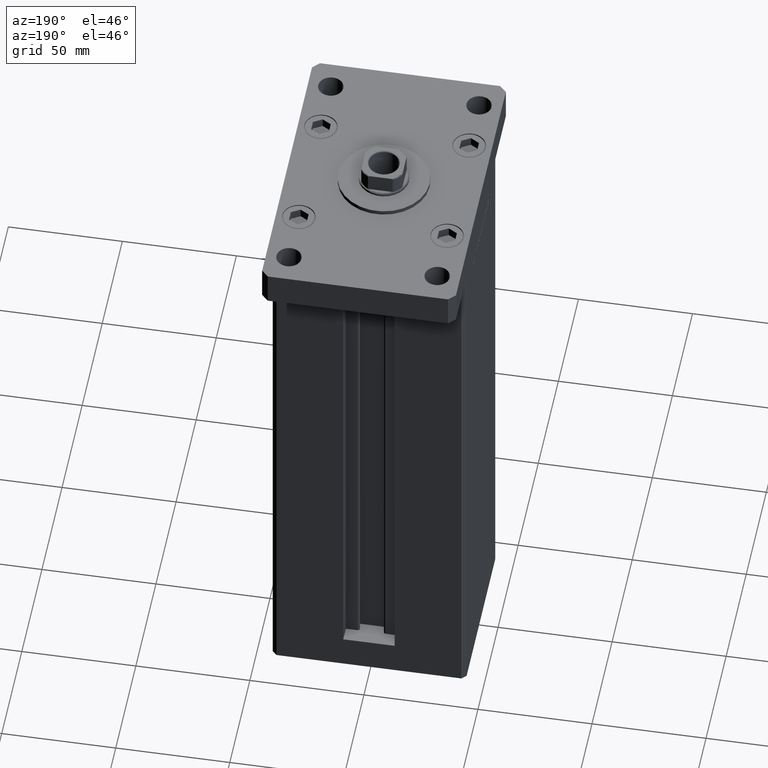
[diagram: clean part render]
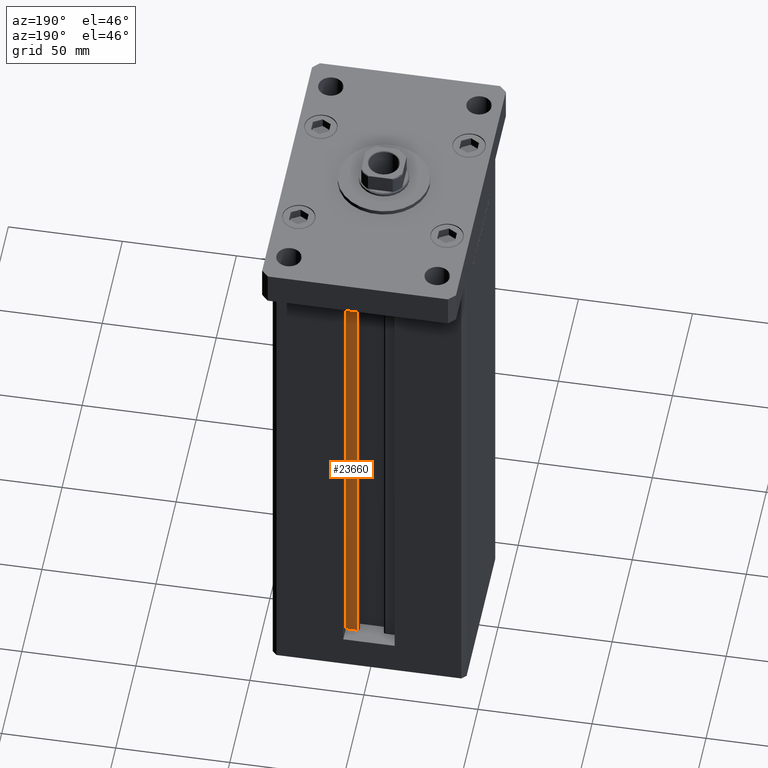
[diagram: same view with one face highlighted and labeled with its STEP entity id]
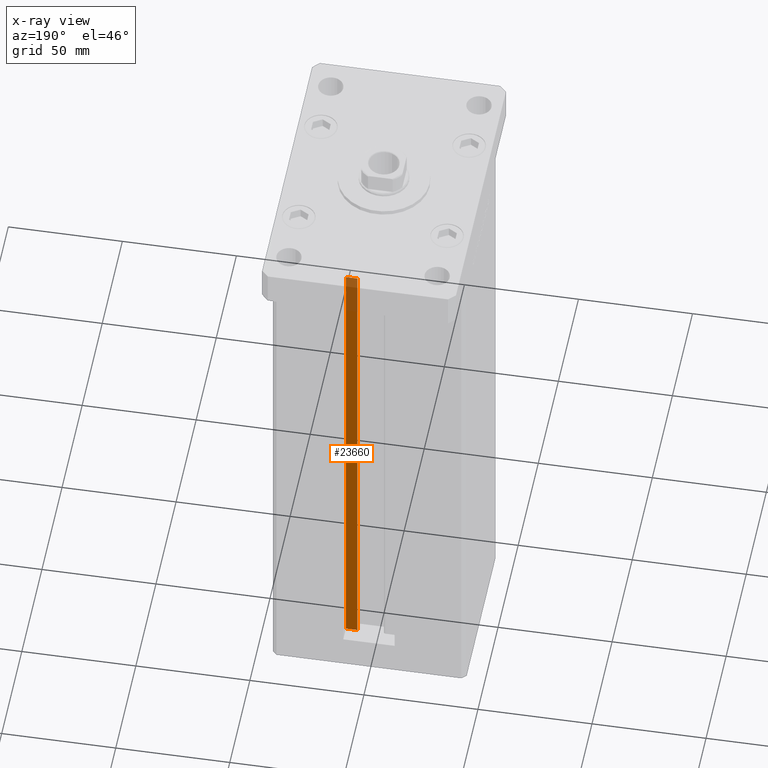
[diagram: x-ray of the same camera — body ghosted, the highlighted face saturated]
A machine part, auxiliary view. The second image highlights one B-rep face of the part: STEP entity #23660.
The next image is the same camera in x-ray: the body ghosted, the highlighted face saturated — about 9% of this face is hidden behind the body in this view.
In plain terms, the highlighted planar face has unit normal (0, -1, 0).
Its self-contained STEP definition (entity closure, byte-faithful):
#246 = ORIENTED_EDGE ( 'NONE', *, *, #32616, .F. ) ;
#2594 = VECTOR ( 'NONE', #53153, 1000.000000000000000 ) ;
#2837 = LINE ( 'NONE', #11248, #26798 ) ;
#5660 = CARTESIAN_POINT ( 'NONE',  ( 0.000000000000000000, 30.99999999999999289, 218.5000000000000000 ) ) ;
#6891 = CARTESIAN_POINT ( 'NONE',  ( 6.183333333333999704, 30.99999999999999289, 218.5000000000000000 ) ) ;
#8052 = VERTEX_POINT ( 'NONE', #6891 ) ;
#11248 = CARTESIAN_POINT ( 'NONE',  ( 11.25000000000000000, 30.99999999999999289, 0.000000000000000000 ) ) ;
#11875 = VERTEX_POINT ( 'NONE', #31506 ) ;
#13983 = CARTESIAN_POINT ( 'NONE',  ( 6.183333333333999704, 30.99999999999999289, 0.000000000000000000 ) ) ;
#14063 = LINE ( 'NONE', #5660, #22078 ) ;
#14537 = CARTESIAN_POINT ( 'NONE',  ( 11.25000000000000000, 30.99999999999999289, 0.000000000000000000 ) ) ;
#16041 = CARTESIAN_POINT ( 'NONE',  ( 6.183333333333999704, 30.99999999999999289, 0.000000000000000000 ) ) ;
#16793 = DIRECTION ( 'NONE',  ( 0.000000000000000000, -0.000000000000000000, -1.000000000000000000 ) ) ;
#18955 = VECTOR ( 'NONE', #50286, 1000.000000000000000 ) ;
#20315 = PLANE ( 'NONE',  #39670 ) ;
#22078 = VECTOR ( 'NONE', #30057, 1000.000000000000000 ) ;
#23660 = ADVANCED_FACE ( 'NONE', ( #24400 ), #20315, .F. ) ;
#24400 = FACE_OUTER_BOUND ( 'NONE', #32691, .T. ) ;
#24693 = EDGE_CURVE ( 'NONE', #48072, #8052, #50547, .T. ) ;
#25197 = DIRECTION ( 'NONE',  ( 0.000000000000000000, -1.000000000000000000, 0.000000000000000000 ) ) ;
#26798 = VECTOR ( 'NONE', #36169, 1000.000000000000000 ) ;
#30057 = DIRECTION ( 'NONE',  ( -1.000000000000000000, 0.000000000000000000, 0.000000000000000000 ) ) ;
#31506 = CARTESIAN_POINT ( 'NONE',  ( 11.25000000000000000, 30.99999999999999289, 218.5000000000000000 ) ) ;
#32279 = EDGE_CURVE ( 'NONE', #51273, #11875, #2837, .T. ) ;
#32616 = EDGE_CURVE ( 'NONE', #48072, #51273, #48556, .T. ) ;
#32691 = EDGE_LOOP ( 'NONE', ( #48825, #246, #33184, #39273 ) ) ;
#33184 = ORIENTED_EDGE ( 'NONE', *, *, #24693, .T. ) ;
#36169 = DIRECTION ( 'NONE',  ( -0.000000000000000000, -0.000000000000000000, 1.000000000000000000 ) ) ;
#39273 = ORIENTED_EDGE ( 'NONE', *, *, #45040, .F. ) ;
#39670 = AXIS2_PLACEMENT_3D ( 'NONE', #49577, #25197, #16793 ) ;
#45040 = EDGE_CURVE ( 'NONE', #11875, #8052, #14063, .T. ) ;
#48072 = VERTEX_POINT ( 'NONE', #50318 ) ;
#48556 = LINE ( 'NONE', #16041, #2594 ) ;
#48825 = ORIENTED_EDGE ( 'NONE', *, *, #32279, .F. ) ;
#49577 = CARTESIAN_POINT ( 'NONE',  ( 6.183333333333999704, 30.99999999999999289, 0.000000000000000000 ) ) ;
#50286 = DIRECTION ( 'NONE',  ( -0.000000000000000000, -0.000000000000000000, 1.000000000000000000 ) ) ;
#50318 = CARTESIAN_POINT ( 'NONE',  ( 6.183333333333999704, 30.99999999999999289, 0.000000000000000000 ) ) ;
#50547 = LINE ( 'NONE', #13983, #18955 ) ;
#51273 = VERTEX_POINT ( 'NONE', #14537 ) ;
#53153 = DIRECTION ( 'NONE',  ( 1.000000000000000000, 0.000000000000000000, 0.000000000000000000 ) ) ;